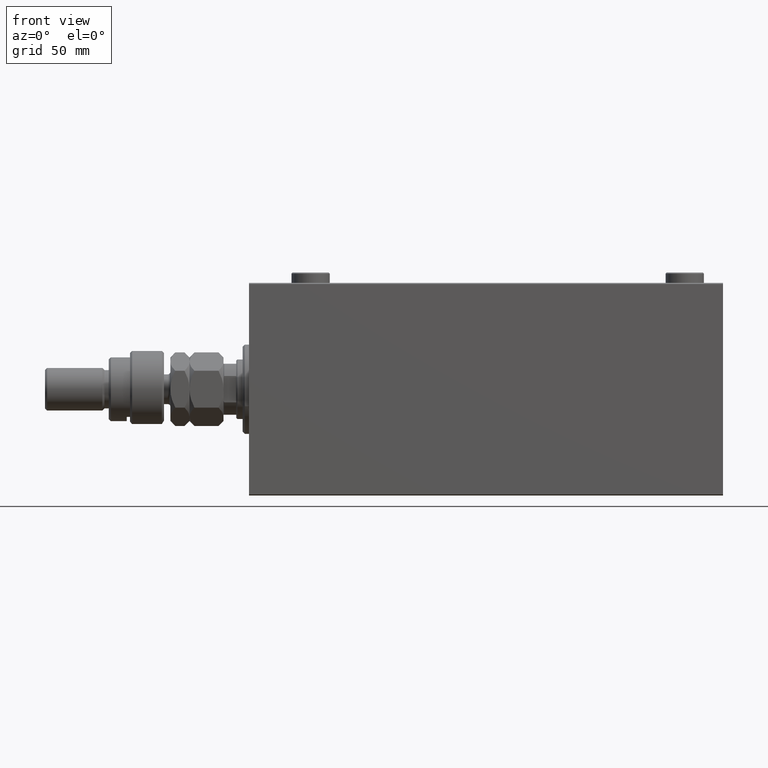
[diagram: clean part render]
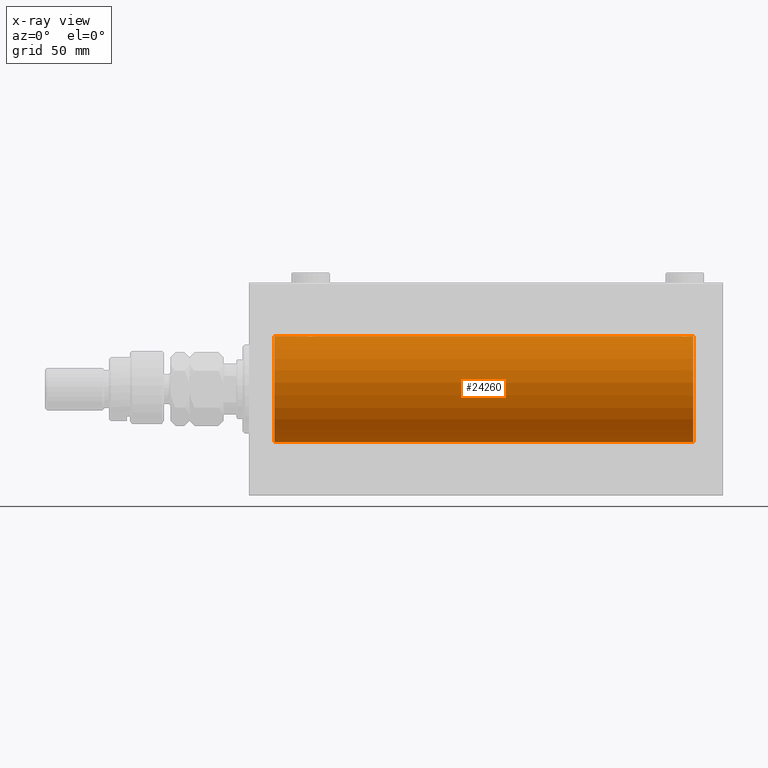
[diagram: x-ray — body ghosted, one internal face saturated and labeled with its STEP entity id]
A machine part, front view, then the same camera in x-ray: the body is ghosted and one INTERNAL B-rep face — a face not visible from any outside direction — is saturated and labeled: STEP entity #24260.
In plain terms, the highlighted cylindrical surface (partial cylindrical patch) has radius 25 mm, axis along (-1, -0, -0).
Its self-contained STEP definition (entity closure, byte-faithful):
#723 = CARTESIAN_POINT ( 'NONE',  ( 27.74616804575498108, -2.169003991399871989, 24.90589728951138326 ) ) ;
#1113 = CARTESIAN_POINT ( 'NONE',  ( 26.50000000000000355, -1.828402720252098442E-15, -25.00000000000000000 ) ) ;
#1375 = CARTESIAN_POINT ( 'NONE',  ( 27.34878866440888601, -1.884161199660611796, -24.92916496727982434 ) ) ;
#1589 = CARTESIAN_POINT ( 'NONE',  ( 203.3461666385066451, -1.881857718844717642, 24.92933960374833546 ) ) ;
#1726 = DIRECTION ( 'NONE',  ( 0.000000000000000000, 0.000000000000000000, 1.000000000000000000 ) ) ;
#1831 = CARTESIAN_POINT ( 'NONE',  ( 203.7461680457549562, -2.169003991399866216, 24.90589728951138682 ) ) ;
#2030 = EDGE_CURVE ( 'NONE', #46017, #11095, #7982, .T. ) ;
#2148 = EDGE_CURVE ( 'NONE', #43629, #30381, #25423, .T. ) ;
#2259 = CARTESIAN_POINT ( 'NONE',  ( 209.0000000000000000, 0.000000000000000000, 25.00000000000000000 ) ) ;
#2280 = CARTESIAN_POINT ( 'NONE',  ( 204.3543933385136313, -2.420689345803774817, -24.88254961038872892 ) ) ;
#2559 = CARTESIAN_POINT ( 'NONE',  ( 202.6278403059139634, -0.8058335233485443005, 24.98746277938383287 ) ) ;
#2716 = ORIENTED_EDGE ( 'NONE', *, *, #32768, .T. ) ;
#2941 = CARTESIAN_POINT ( 'NONE',  ( 26.50000000000000355, -1.940558383798427991E-23, 25.00000000000000000 ) ) ;
#2949 = VERTEX_POINT ( 'NONE', #16893 ) ;
#3276 = CARTESIAN_POINT ( 'NONE',  ( 205.8043566091630794, -2.372734907014173000, 24.88722742718433878 ) ) ;
#3650 = CARTESIAN_POINT ( 'NONE',  ( 209.0000000000000000, 3.061616997868383043E-15, -25.00000000000000000 ) ) ;
#3756 = CARTESIAN_POINT ( 'NONE',  ( 204.6705231988573246, -2.483544361357268304, 24.87635491893501793 ) ) ;
#4080 = CARTESIAN_POINT ( 'NONE',  ( 209.0000000000000000, 0.000000000000000000, 25.00000000000000000 ) ) ;
#4139 = CARTESIAN_POINT ( 'NONE',  ( 26.75239748980449050, -1.106703319666882956, 24.97594585958023572 ) ) ;
#4373 = CARTESIAN_POINT ( 'NONE',  ( 27.11587617213529100, -1.651251241585102614, 24.94567559498349141 ) ) ;
#4451 = DIRECTION ( 'NONE',  ( -1.000000000000000000, -0.000000000000000000, -0.000000000000000000 ) ) ;
#4511 = CARTESIAN_POINT ( 'NONE',  ( 26.50000000000000355, -1.940558383798427991E-23, 25.00000000000000000 ) ) ;
#4624 = CARTESIAN_POINT ( 'NONE',  ( 30.88185954148645251, -1.653834020452943809, 24.94550385189585029 ) ) ;
#4801 = CARTESIAN_POINT ( 'NONE',  ( 29.32947680114268962, -2.483544361357264751, -24.87635491893502149 ) ) ;
#4895 = ORIENTED_EDGE ( 'NONE', *, *, #31190, .T. ) ;
#5033 = CARTESIAN_POINT ( 'NONE',  ( 31.49999999999999289, -0.1631750940176170117, -25.00000000000000711 ) ) ;
#5189 = CIRCLE ( 'NONE', #32433, 25.00000000000000000 ) ;
#5695 = CARTESIAN_POINT ( 'NONE',  ( 202.7539362090594182, -1.109818057797430813, -24.97580694515542987 ) ) ;
#5762 = CARTESIAN_POINT ( 'NONE',  ( 28.19564339083697746, -2.372734907014167671, -24.88722742718433167 ) ) ;
#5804 = EDGE_LOOP ( 'NONE', ( #31978, #31710, #34638, #2716, #7416, #4895, #29260, #30852, #32912, #17324, #27323, #41700 ) ) ;
#5932 = CARTESIAN_POINT ( 'NONE',  ( 205.3294768011427323, -2.483544361357277186, -24.87635491893501083 ) ) ;
#6175 = CARTESIAN_POINT ( 'NONE',  ( 202.5665064476025066, -0.6588655613946002854, -24.99312727339970763 ) ) ;
#6217 = CARTESIAN_POINT ( 'NONE',  ( 202.5798509077907283, -0.6480119923854213981, 24.99212088949391131 ) ) ;
#6412 = CARTESIAN_POINT ( 'NONE',  ( 204.8367641036145699, -2.500125740978206057, -24.87467329022544504 ) ) ;
#6440 = VECTOR ( 'NONE', #7259, 1000.000000000000000 ) ;
#7259 = DIRECTION ( 'NONE',  ( -1.000000000000000000, -0.000000000000000000, -0.000000000000000000 ) ) ;
#7416 = ORIENTED_EDGE ( 'NONE', *, *, #2148, .T. ) ;
#7458 = EDGE_CURVE ( 'NONE', #31661, #22377, #22958, .T. ) ;
#7544 = DIRECTION ( 'NONE',  ( -1.000000000000000000, -0.000000000000000000, -0.000000000000000000 ) ) ;
#7982 = LINE ( 'NONE', #4080, #38943 ) ;
#8043 = CARTESIAN_POINT ( 'NONE',  ( 26.62784030591392437, -0.8058335233485459659, 24.98746277938383287 ) ) ;
#8146 = CARTESIAN_POINT ( 'NONE',  ( 206.6538333614933833, -1.881857718844729632, -24.92933960374833546 ) ) ;
#8342 = CARTESIAN_POINT ( 'NONE',  ( 31.50000000000000000, 3.061616978460191625E-15, -25.00000000000000000 ) ) ;
#8451 = CARTESIAN_POINT ( 'NONE',  ( 26.56650644760253499, -0.6588655613945862966, -24.99312727339971119 ) ) ;
#8862 = CARTESIAN_POINT ( 'NONE',  ( 207.5000000000000284, 3.061616978453486307E-15, -25.00000000000000000 ) ) ;
#9208 = CARTESIAN_POINT ( 'NONE',  ( 207.5000000000000284, 3.061616978453486307E-15, -25.00000000000000000 ) ) ;
#9325 = CARTESIAN_POINT ( 'NONE',  ( 31.50000000000000000, -6.390602579065537931E-15, 25.00000000000000000 ) ) ;
#9365 = DIRECTION ( 'NONE',  ( 0.000000000000000000, 0.000000000000000000, 1.000000000000000000 ) ) ;
#9420 = CARTESIAN_POINT ( 'NONE',  ( 29.80788342405805835, -2.371528299825740760, -24.88734287464371064 ) ) ;
#9874 = CARTESIAN_POINT ( 'NONE',  ( 202.5000000000000000, -1.941505016884693205E-23, 25.00000000000000000 ) ) ;
#10346 = CARTESIAN_POINT ( 'NONE',  ( 207.4334935523975219, -0.6588655613945811895, 24.99312727339969697 ) ) ;
#10412 = B_SPLINE_CURVE_WITH_KNOTS ( 'NONE', 3,
 ( #8862, #37624, #11567, #26424, #15456, #45163, #30330, #26663, #41515, #8146, #24195, #12989, #28584, #42463, #24444, #5932, #31276, #6412, #46119, #2280, #12759, #38810, #16406, #35893, #28349, #34933, #27615, #39285, #5695, #6175, #20786, #31998 ),
 .UNSPECIFIED., .F., .F.,
 ( 4, 2, 2, 2, 2, 2, 2, 2, 2, 2, 2, 2, 2, 2, 2, 4 ),
 ( 0.007821024441662280738, 0.008309723826317890610, 0.008798423210973498748, 0.009287122595629108621, 0.009775821980284716758, 0.01026452136494032663, 0.01075322074959593477, 0.01124192013425154464, 0.01173061951890715451, 0.01221931890356276265, 0.01270801828821837079, 0.01319671767287398240, 0.01368541705752959053, 0.01417411644218519867, 0.01466281582684080854, 0.01564021459615199533 ),
 .UNSPECIFIED. ) ;
#10921 = LINE ( 'NONE', #25775, #6440 ) ;
#11095 = VERTEX_POINT ( 'NONE', #9325 ) ;
#11258 = B_SPLINE_CURVE_WITH_KNOTS ( 'NONE', 3,
 ( #32043, #39569, #27906, #6217, #2559, #16446, #13751, #20102, #34974, #1589, #35219, #1831, #42749, #25925, #47361, #3756, #13996, #17650, #14958, #25202, #3276, #47839, #14471, #22021, #29336, #47602, #40041, #40534, #28867, #10346, #32519, #33234 ),
 .UNSPECIFIED., .F., .F.,
 ( 4, 2, 2, 2, 2, 2, 2, 2, 2, 2, 2, 2, 2, 2, 2, 4 ),
 ( 0.007821024441662296350, 0.008309723826317906223, 0.008798423210973516095, 0.009287122595629124233, 0.009775821980284732371, 0.01026452136494034224, 0.01075322074959595212, 0.01124192013425156025, 0.01173061951890716839, 0.01221931890356277826, 0.01270801828821838814, 0.01319671767287399627, 0.01368541705752960788, 0.01417411644218521602, 0.01466281582684082589, 0.01564021459615201268 ),
 .UNSPECIFIED. ) ;
#11567 = CARTESIAN_POINT ( 'NONE',  ( 207.4841784005765817, -0.3254210271412166788, -24.99840249400845238 ) ) ;
#11928 = CARTESIAN_POINT ( 'NONE',  ( 31.24606379094066000, -1.109818057797419932, 24.97580694515541921 ) ) ;
#12007 = VERTEX_POINT ( 'NONE', #2259 ) ;
#12344 = CARTESIAN_POINT ( 'NONE',  ( 31.24760251019551305, -1.106703319666880514, -24.97594585958023927 ) ) ;
#12586 = CARTESIAN_POINT ( 'NONE',  ( 30.11036796508864555, -2.245863995402895164, -24.89899750494197406 ) ) ;
#12759 = CARTESIAN_POINT ( 'NONE',  ( 204.1956433908369775, -2.372734907014184103, -24.88722742718433167 ) ) ;
#12822 = CARTESIAN_POINT ( 'NONE',  ( 26.75393620905933645, -1.109818057797413715, -24.97580694515542277 ) ) ;
#12861 = LINE ( 'NONE', #16756, #31240 ) ;
#12989 = CARTESIAN_POINT ( 'NONE',  ( 206.2538319542450722, -2.169003991399879538, -24.90589728951138682 ) ) ;
#13136 = VERTEX_POINT ( 'NONE', #45819 ) ;
#13751 = CARTESIAN_POINT ( 'NONE',  ( 202.8298870971907775, -1.252049606094326695, 24.96900299967627390 ) ) ;
#13996 = CARTESIAN_POINT ( 'NONE',  ( 204.8329350482193831, -2.499872792855079240, 24.87469871246083031 ) ) ;
#14471 = CARTESIAN_POINT ( 'NONE',  ( 206.2508402392405173, -2.170728182476725276, 24.90574631553724672 ) ) ;
#14518 = VECTOR ( 'NONE', #38997, 1000.000000000000000 ) ;
#14958 = CARTESIAN_POINT ( 'NONE',  ( 205.3259657003945335, -2.484007091859763872, 24.87630842367762796 ) ) ;
#15456 = CARTESIAN_POINT ( 'NONE',  ( 207.3721596940861218, -0.8058335233485458549, -24.98746277938383287 ) ) ;
#15581 = CARTESIAN_POINT ( 'NONE',  ( 29.16323589638542302, -2.500125740978195843, 24.87467329022545215 ) ) ;
#15583 = B_SPLINE_CURVE_WITH_KNOTS ( 'NONE', 3,
 ( #2941, #36078, #43615, #32666, #8043, #4139, #18764, #37516, #4373, #22889, #19229, #723, #45055, #26551, #27016, #23368, #26065, #15581, #30692, #34105, #26786, #29732, #26305, #20374, #30457, #4624, #35245, #37748, #11928, #45294, #40914, #41163 ),
 .UNSPECIFIED., .F., .F.,
 ( 4, 2, 2, 2, 2, 2, 2, 2, 2, 2, 2, 2, 2, 2, 2, 4 ),
 ( 0.007821024441662254717, 0.008309723826317859385, 0.008798423210973464054, 0.009287122595629068722, 0.009775821980284673390, 0.01026452136494027806, 0.01075322074959588099, 0.01124192013425148566, 0.01173061951890709033, 0.01221931890356269500, 0.01270801828821829967, 0.01319671767287390260, 0.01368541705752950727, 0.01417411644218511194, 0.01466281582684071660, 0.01564021459615192594 ),
 .UNSPECIFIED. ) ;
#15636 = VERTEX_POINT ( 'NONE', #27740 ) ;
#16177 = CARTESIAN_POINT ( 'NONE',  ( 209.0000000000000000, 0.000000000000000000, 0.000000000000000000 ) ) ;
#16235 = CARTESIAN_POINT ( 'NONE',  ( 26.83172358506042698, -1.255214705003176112, -24.96884293994577320 ) ) ;
#16406 = CARTESIAN_POINT ( 'NONE',  ( 203.7491597607594827, -2.170728182476739043, -24.90574631553725027 ) ) ;
#16446 = CARTESIAN_POINT ( 'NONE',  ( 202.7523974898045083, -1.106703319666880958, 24.97594585958023217 ) ) ;
#16713 = CARTESIAN_POINT ( 'NONE',  ( 31.37215969408608274, -0.8058335233485438565, -24.98746277938383997 ) ) ;
#16756 = CARTESIAN_POINT ( 'NONE',  ( 209.0000000000000000, 3.061616997868383043E-15, -25.00000000000000000 ) ) ;
#16893 = CARTESIAN_POINT ( 'NONE',  ( 207.5000000000000284, 1.404322005998729010E-15, 25.00000000000000000 ) ) ;
#17039 = EDGE_CURVE ( 'NONE', #31661, #12007, #5189, .T. ) ;
#17259 = DIRECTION ( 'NONE',  ( -1.000000000000000000, 0.000000000000000000, 0.000000000000000000 ) ) ;
#17324 = ORIENTED_EDGE ( 'NONE', *, *, #2030, .F. ) ;
#17650 = CARTESIAN_POINT ( 'NONE',  ( 205.1632358963853733, -2.500125740978193178, 24.87467329022544504 ) ) ;
#18764 = CARTESIAN_POINT ( 'NONE',  ( 26.82988709719075970, -1.252049606094339351, 24.96900299967627390 ) ) ;
#19229 = CARTESIAN_POINT ( 'NONE',  ( 27.47463817756919369, -1.987446652080264720, 24.92104239223420592 ) ) ;
#19751 = FACE_OUTER_BOUND ( 'NONE', #5804, .T. ) ;
#19752 = CARTESIAN_POINT ( 'NONE',  ( 209.0000000000000000, 3.061616997868383043E-15, -25.00000000000000000 ) ) ;
#20102 = CARTESIAN_POINT ( 'NONE',  ( 203.0125018416559897, -1.525407911884356205, 24.95379469572361586 ) ) ;
#20134 = CARTESIAN_POINT ( 'NONE',  ( 30.65383336149337623, -1.881857718844709870, -24.92933960374833191 ) ) ;
#20374 = CARTESIAN_POINT ( 'NONE',  ( 30.52256774340189338, -1.989585286700249256, 24.92087098724766747 ) ) ;
#20492 = CARTESIAN_POINT ( 'NONE',  ( 209.0000000000000000, 0.000000000000000000, 25.00000000000000000 ) ) ;
#20611 = CARTESIAN_POINT ( 'NONE',  ( 31.48417840057656747, -0.3254210271412188993, -24.99840249400844883 ) ) ;
#20786 = CARTESIAN_POINT ( 'NONE',  ( 202.4999999999999716, -0.3305063766663960956, -24.99999999999999645 ) ) ;
#22021 = CARTESIAN_POINT ( 'NONE',  ( 206.5225677434018507, -1.989585286700252809, 24.92087098724766747 ) ) ;
#22377 = VERTEX_POINT ( 'NONE', #9208 ) ;
#22889 = CARTESIAN_POINT ( 'NONE',  ( 27.34616663850662377, -1.881857718844717642, 24.92933960374833902 ) ) ;
#22958 = LINE ( 'NONE', #37818, #44596 ) ;
#23190 = CARTESIAN_POINT ( 'NONE',  ( 202.5000000000000000, -2.120113447159002470E-14, -25.00000000000000000 ) ) ;
#23312 = CARTESIAN_POINT ( 'NONE',  ( 30.88412382786471611, -1.651251241585095508, -24.94567559498348785 ) ) ;
#23368 = CARTESIAN_POINT ( 'NONE',  ( 28.67052319885730682, -2.483544361357271857, 24.87635491893501793 ) ) ;
#23783 = CARTESIAN_POINT ( 'NONE',  ( 31.17011290280924740, -1.252049606094333578, -24.96900299967627390 ) ) ;
#24195 = CARTESIAN_POINT ( 'NONE',  ( 206.5253618224307388, -1.987446652080269383, -24.92104239223419881 ) ) ;
#24260 = ADVANCED_FACE ( 'NONE', ( #19751 ), #34620, .F. ) ;
#24268 = CARTESIAN_POINT ( 'NONE',  ( 27.11814045851354393, -1.653834020452933151, -24.94550385189584674 ) ) ;
#24444 = CARTESIAN_POINT ( 'NONE',  ( 205.6490439016910443, -2.419770561643912021, -24.88263927071751169 ) ) ;
#25202 = CARTESIAN_POINT ( 'NONE',  ( 205.6456066614863119, -2.420689345803761938, 24.88254961038872892 ) ) ;
#25423 = B_SPLINE_CURVE_WITH_KNOTS ( 'NONE', 3,
 ( #45709, #5033, #20611, #31345, #16713, #12344, #23783, #38632, #23312, #20134, #46426, #35481, #12586, #9420, #38161, #4801, #35246, #34519, #34757, #42781, #5762, #31582, #39119, #27935, #1375, #24268, #46187, #16235, #12822, #8451, #45474, #35004 ),
 .UNSPECIFIED., .F., .F.,
 ( 4, 2, 2, 2, 2, 2, 2, 2, 2, 2, 2, 2, 2, 2, 2, 4 ),
 ( 0.007821024441662299820, 0.008309723826317909692, 0.008798423210973517830, 0.009287122595629124233, 0.009775821980284728902, 0.01026452136494033357, 0.01075322074959593997, 0.01124192013425154464, 0.01173061951890715104, 0.01221931890356275571, 0.01270801828821836038, 0.01319671767287396852, 0.01368541705752957319, 0.01417411644218517959, 0.01466281582684078426, 0.01564021459615199533 ),
 .UNSPECIFIED. ) ;
#25775 = CARTESIAN_POINT ( 'NONE',  ( 209.0000000000000000, 0.000000000000000000, 25.00000000000000000 ) ) ;
#25925 = CARTESIAN_POINT ( 'NONE',  ( 204.1921165759419807, -2.371528299825747421, 24.88734287464370709 ) ) ;
#26065 = CARTESIAN_POINT ( 'NONE',  ( 28.83293504821939734, -2.499872792855082793, 24.87469871246083031 ) ) ;
#26305 = CARTESIAN_POINT ( 'NONE',  ( 30.25084023924054932, -2.170728182476723500, 24.90574631553725027 ) ) ;
#26424 = CARTESIAN_POINT ( 'NONE',  ( 207.4201490922093001, -0.6480119923854175124, -24.99212088949390775 ) ) ;
#26551 = CARTESIAN_POINT ( 'NONE',  ( 28.19211657594194520, -2.371528299825748309, 24.88734287464370709 ) ) ;
#26663 = CARTESIAN_POINT ( 'NONE',  ( 206.9874981583440103, -1.525407911884364420, -24.95379469572361941 ) ) ;
#26786 = CARTESIAN_POINT ( 'NONE',  ( 29.80435660916301899, -2.372734907014176553, 24.88722742718433878 ) ) ;
#27016 = CARTESIAN_POINT ( 'NONE',  ( 28.35095609830903385, -2.419770561643910245, 24.88263927071751169 ) ) ;
#27323 = ORIENTED_EDGE ( 'NONE', *, *, #45238, .T. ) ;
#27615 = CARTESIAN_POINT ( 'NONE',  ( 203.0146196628290056, -1.528152964861330343, -24.95362559291378801 ) ) ;
#27740 = CARTESIAN_POINT ( 'NONE',  ( 12.00000000000001066, 0.000000000000000000, 25.00000000000000000 ) ) ;
#27906 = CARTESIAN_POINT ( 'NONE',  ( 202.5158215994233899, -0.3254210271412208977, 24.99840249400844527 ) ) ;
#27935 = CARTESIAN_POINT ( 'NONE',  ( 27.47743225659810307, -1.989585286700239708, -24.92087098724766392 ) ) ;
#28349 = CARTESIAN_POINT ( 'NONE',  ( 203.3487886644088576, -1.884161199660634667, -24.92916496727982079 ) ) ;
#28584 = CARTESIAN_POINT ( 'NONE',  ( 206.1103679650887557, -2.245863995402900049, -24.89899750494197761 ) ) ;
#28867 = CARTESIAN_POINT ( 'NONE',  ( 207.2460637909407239, -1.109818057797409718, 24.97580694515542632 ) ) ;
#29260 = ORIENTED_EDGE ( 'NONE', *, *, #32950, .T. ) ;
#29336 = CARTESIAN_POINT ( 'NONE',  ( 206.6512113355911993, -1.884161199660621344, 24.92916496727982789 ) ) ;
#29732 = CARTESIAN_POINT ( 'NONE',  ( 30.10723845838409929, -2.247417070759899271, 24.89885693081946272 ) ) ;
#30330 = CARTESIAN_POINT ( 'NONE',  ( 207.1701129028092510, -1.252049606094334688, -24.96900299967627390 ) ) ;
#30381 = VERTEX_POINT ( 'NONE', #1113 ) ;
#30457 = CARTESIAN_POINT ( 'NONE',  ( 30.65121133559111755, -1.884161199660622454, 24.92916496727982434 ) ) ;
#30692 = CARTESIAN_POINT ( 'NONE',  ( 29.32596570039459394, -2.484007091859766092, 24.87630842367763506 ) ) ;
#30852 = ORIENTED_EDGE ( 'NONE', *, *, #42076, .F. ) ;
#31053 = DIRECTION ( 'NONE',  ( -1.000000000000000000, 0.000000000000000000, 0.000000000000000000 ) ) ;
#31190 = EDGE_CURVE ( 'NONE', #30381, #13136, #12861, .T. ) ;
#31221 = LINE ( 'NONE', #20492, #14518 ) ;
#31240 = VECTOR ( 'NONE', #42576, 1000.000000000000000 ) ;
#31276 = CARTESIAN_POINT ( 'NONE',  ( 205.1670649517806169, -2.499872792855091674, -24.87469871246082675 ) ) ;
#31345 = CARTESIAN_POINT ( 'NONE',  ( 31.42014909220928942, -0.6480119923854186226, -24.99212088949390420 ) ) ;
#31582 = CARTESIAN_POINT ( 'NONE',  ( 27.89276154161590426, -2.247417070759891278, -24.89885693081946272 ) ) ;
#31661 = VERTEX_POINT ( 'NONE', #19752 ) ;
#31710 = ORIENTED_EDGE ( 'NONE', *, *, #7458, .T. ) ;
#31978 = ORIENTED_EDGE ( 'NONE', *, *, #17039, .F. ) ;
#31998 = CARTESIAN_POINT ( 'NONE',  ( 202.5000000000000000, -2.120113447159002470E-14, -25.00000000000000000 ) ) ;
#32043 = CARTESIAN_POINT ( 'NONE',  ( 202.5000000000000000, -1.941505016884693205E-23, 25.00000000000000000 ) ) ;
#32433 = AXIS2_PLACEMENT_3D ( 'NONE', #16177, #31053, #9365 ) ;
#32519 = CARTESIAN_POINT ( 'NONE',  ( 207.5000000000000000, -0.3305063766663748903, 24.99999999999999289 ) ) ;
#32666 = CARTESIAN_POINT ( 'NONE',  ( 26.57985090779070703, -0.6480119923854221753, 24.99212088949390420 ) ) ;
#32768 = EDGE_CURVE ( 'NONE', #36837, #43629, #37029, .T. ) ;
#32912 = ORIENTED_EDGE ( 'NONE', *, *, #42330, .T. ) ;
#32950 = EDGE_CURVE ( 'NONE', #13136, #15636, #46806, .T. ) ;
#33234 = CARTESIAN_POINT ( 'NONE',  ( 207.5000000000000284, 1.404322005998729010E-15, 25.00000000000000000 ) ) ;
#34105 = CARTESIAN_POINT ( 'NONE',  ( 29.64560666148631540, -2.420689345803762382, 24.88254961038873958 ) ) ;
#34519 = CARTESIAN_POINT ( 'NONE',  ( 28.83676410361456632, -2.500125740978188738, -24.87467329022545215 ) ) ;
#34620 = CYLINDRICAL_SURFACE ( 'NONE', #38018, 25.00000000000000000 ) ;
#34638 = ORIENTED_EDGE ( 'NONE', *, *, #41842, .T. ) ;
#34757 = CARTESIAN_POINT ( 'NONE',  ( 28.67403429960539896, -2.484007091859758543, -24.87630842367763151 ) ) ;
#34933 = CARTESIAN_POINT ( 'NONE',  ( 203.1181404585134942, -1.653834020452956688, -24.94550385189584674 ) ) ;
#34974 = CARTESIAN_POINT ( 'NONE',  ( 203.1158761721353585, -1.651251241585103724, 24.94567559498349141 ) ) ;
#35004 = CARTESIAN_POINT ( 'NONE',  ( 26.50000000000000355, -1.828402720252098442E-15, -25.00000000000000000 ) ) ;
#35037 = EDGE_CURVE ( 'NONE', #12007, #2949, #10921, .T. ) ;
#35112 = CARTESIAN_POINT ( 'NONE',  ( 209.0000000000000000, 0.000000000000000000, 0.000000000000000000 ) ) ;
#35219 = CARTESIAN_POINT ( 'NONE',  ( 203.4746381775692328, -1.987446652080256948, 24.92104239223420592 ) ) ;
#35245 = CARTESIAN_POINT ( 'NONE',  ( 30.98538033717094464, -1.528152964861315244, 24.95362559291378801 ) ) ;
#35246 = CARTESIAN_POINT ( 'NONE',  ( 29.16706495178059910, -2.499872792855075687, -24.87469871246081965 ) ) ;
#35365 = VERTEX_POINT ( 'NONE', #4511 ) ;
#35481 = CARTESIAN_POINT ( 'NONE',  ( 30.25383195424503313, -2.169003991399864884, -24.90589728951138682 ) ) ;
#35893 = CARTESIAN_POINT ( 'NONE',  ( 203.4774322565981777, -1.989585286700266353, -24.92087098724766037 ) ) ;
#35936 = VECTOR ( 'NONE', #7544, 1000.000000000000000 ) ;
#36078 = CARTESIAN_POINT ( 'NONE',  ( 26.50000000000000711, -0.1631750940176204812, 25.00000000000000711 ) ) ;
#36837 = VERTEX_POINT ( 'NONE', #23190 ) ;
#37029 = LINE ( 'NONE', #3650, #35936 ) ;
#37455 = DIRECTION ( 'NONE',  ( -1.000000000000000000, -0.000000000000000000, -0.000000000000000000 ) ) ;
#37516 = CARTESIAN_POINT ( 'NONE',  ( 27.01250184165601453, -1.525407911884366863, 24.95379469572361941 ) ) ;
#37624 = CARTESIAN_POINT ( 'NONE',  ( 207.5000000000000284, -0.1631750940176159292, -25.00000000000000711 ) ) ;
#37748 = CARTESIAN_POINT ( 'NONE',  ( 31.16827641493957657, -1.255214705003185438, 24.96884293994578385 ) ) ;
#37818 = CARTESIAN_POINT ( 'NONE',  ( 209.0000000000000000, 3.061616997868383043E-15, -25.00000000000000000 ) ) ;
#38018 = AXIS2_PLACEMENT_3D ( 'NONE', #35112, #38984, #1726 ) ;
#38161 = CARTESIAN_POINT ( 'NONE',  ( 29.64904390169096970, -2.419770561643902695, -24.88263927071750459 ) ) ;
#38632 = CARTESIAN_POINT ( 'NONE',  ( 30.98749815834397481, -1.525407911884360868, -24.95379469572361941 ) ) ;
#38810 = CARTESIAN_POINT ( 'NONE',  ( 203.8927615416159540, -2.247417070759907709, -24.89885693081946982 ) ) ;
#38943 = VECTOR ( 'NONE', #37455, 1000.000000000000000 ) ;
#38984 = DIRECTION ( 'NONE',  ( -1.000000000000000000, -0.000000000000000000, -0.000000000000000000 ) ) ;
#38997 = DIRECTION ( 'NONE',  ( -1.000000000000000000, -0.000000000000000000, -0.000000000000000000 ) ) ;
#39119 = CARTESIAN_POINT ( 'NONE',  ( 27.74915976075944712, -2.170728182476714174, -24.90574631553725027 ) ) ;
#39285 = CARTESIAN_POINT ( 'NONE',  ( 202.8317235850605584, -1.255214705003201425, -24.96884293994579096 ) ) ;
#39569 = CARTESIAN_POINT ( 'NONE',  ( 202.5000000000000000, -0.1631750940176186493, 25.00000000000001066 ) ) ;
#40041 = CARTESIAN_POINT ( 'NONE',  ( 206.9853803371709660, -1.528152964861297258, 24.95362559291378446 ) ) ;
#40534 = CARTESIAN_POINT ( 'NONE',  ( 207.1682764149395553, -1.255214705003166564, 24.96884293994578385 ) ) ;
#40914 = CARTESIAN_POINT ( 'NONE',  ( 31.49999999999997158, -0.3305063766663704494, 25.00000000000000000 ) ) ;
#41163 = CARTESIAN_POINT ( 'NONE',  ( 31.50000000000000000, -6.390602579065537931E-15, 25.00000000000000000 ) ) ;
#41515 = CARTESIAN_POINT ( 'NONE',  ( 206.8841238278647268, -1.651251241585114382, -24.94567559498349141 ) ) ;
#41700 = ORIENTED_EDGE ( 'NONE', *, *, #35037, .F. ) ;
#41842 = EDGE_CURVE ( 'NONE', #22377, #36837, #10412, .T. ) ;
#42076 = EDGE_CURVE ( 'NONE', #35365, #15636, #31221, .T. ) ;
#42146 = AXIS2_PLACEMENT_3D ( 'NONE', #46483, #17259, #46244 ) ;
#42330 = EDGE_CURVE ( 'NONE', #35365, #11095, #15583, .T. ) ;
#42463 = CARTESIAN_POINT ( 'NONE',  ( 205.8078834240581330, -2.371528299825750974, -24.88734287464371420 ) ) ;
#42576 = DIRECTION ( 'NONE',  ( -1.000000000000000000, -0.000000000000000000, -0.000000000000000000 ) ) ;
#42749 = CARTESIAN_POINT ( 'NONE',  ( 203.8896320349113864, -2.245863995402900049, 24.89899750494197050 ) ) ;
#42781 = CARTESIAN_POINT ( 'NONE',  ( 28.35439333851368815, -2.420689345803754833, -24.88254961038873958 ) ) ;
#43615 = CARTESIAN_POINT ( 'NONE',  ( 26.51582159942343608, -0.3254210271412222300, 24.99840249400844883 ) ) ;
#43629 = VERTEX_POINT ( 'NONE', #8342 ) ;
#44596 = VECTOR ( 'NONE', #4451, 1000.000000000000000 ) ;
#45055 = CARTESIAN_POINT ( 'NONE',  ( 27.88963203491136156, -2.245863995402901381, 24.89899750494197050 ) ) ;
#45163 = CARTESIAN_POINT ( 'NONE',  ( 207.2476025101954917, -1.106703319666884511, -24.97594585958023927 ) ) ;
#45238 = EDGE_CURVE ( 'NONE', #46017, #2949, #11258, .T. ) ;
#45294 = CARTESIAN_POINT ( 'NONE',  ( 31.43349355239747567, -0.6588655613945917366, 24.99312727339970053 ) ) ;
#45474 = CARTESIAN_POINT ( 'NONE',  ( 26.50000000000001066, -0.3305063766663757785, -25.00000000000000355 ) ) ;
#45709 = CARTESIAN_POINT ( 'NONE',  ( 31.50000000000000000, 3.061616978460191625E-15, -25.00000000000000000 ) ) ;
#45819 = CARTESIAN_POINT ( 'NONE',  ( 12.00000000000001066, 3.061616997868383043E-15, -25.00000000000000000 ) ) ;
#46017 = VERTEX_POINT ( 'NONE', #9874 ) ;
#46119 = CARTESIAN_POINT ( 'NONE',  ( 204.6740342996053812, -2.484007091859776750, -24.87630842367763151 ) ) ;
#46187 = CARTESIAN_POINT ( 'NONE',  ( 27.01461966282905891, -1.528152964861306584, -24.95362559291379156 ) ) ;
#46244 = DIRECTION ( 'NONE',  ( 0.000000000000000000, 0.000000000000000000, 1.000000000000000000 ) ) ;
#46426 = CARTESIAN_POINT ( 'NONE',  ( 30.52536182243080631, -1.987446652080256504, -24.92104239223419881 ) ) ;
#46483 = CARTESIAN_POINT ( 'NONE',  ( 12.00000000000001066, 0.000000000000000000, 0.000000000000000000 ) ) ;
#46806 = CIRCLE ( 'NONE', #42146, 25.00000000000000000 ) ;
#47361 = CARTESIAN_POINT ( 'NONE',  ( 204.3509560983090694, -2.419770561643906248, 24.88263927071751169 ) ) ;
#47602 = CARTESIAN_POINT ( 'NONE',  ( 206.8818595414864490, -1.653834020452942477, 24.94550385189585029 ) ) ;
#47839 = CARTESIAN_POINT ( 'NONE',  ( 206.1072384583841028, -2.247417070759893942, 24.89885693081946627 ) ) ;